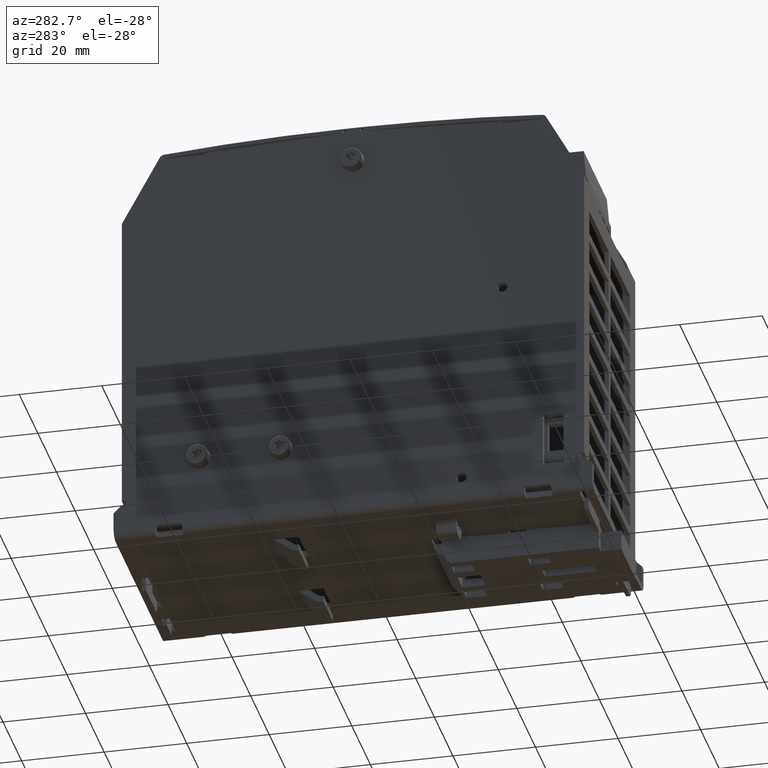
[diagram: clean part render]
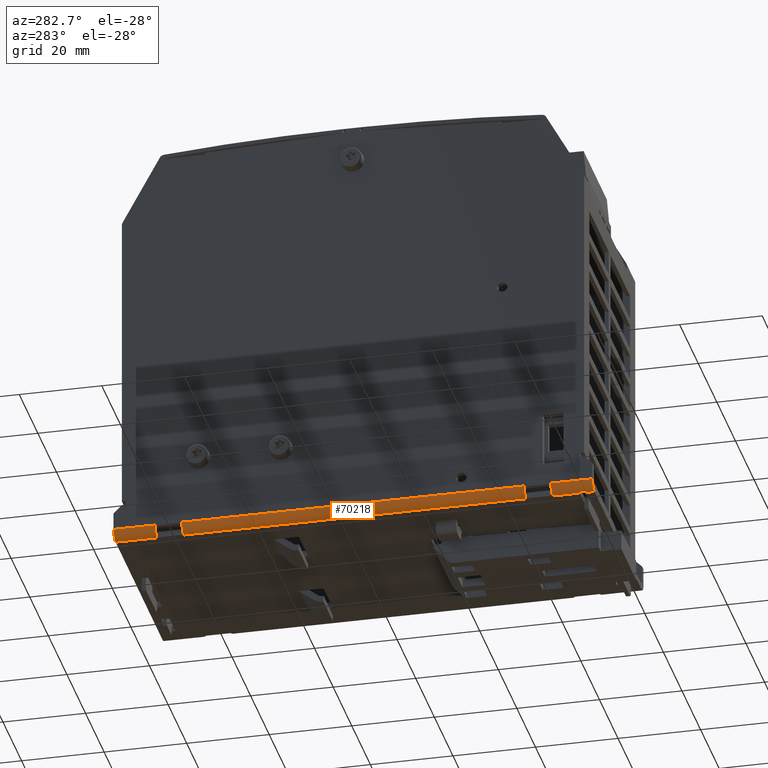
[diagram: same view with one face highlighted and labeled with its STEP entity id]
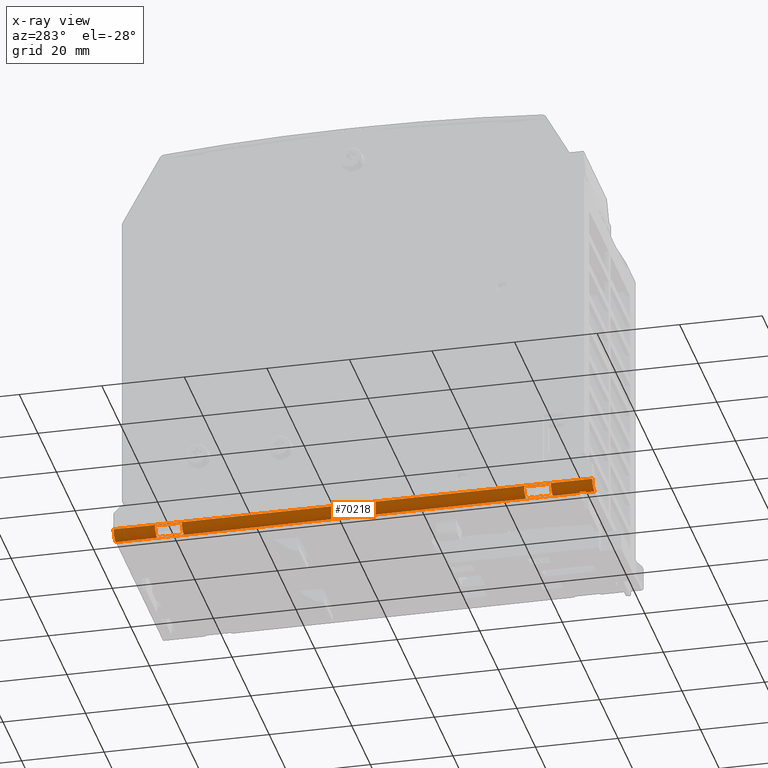
[diagram: x-ray of the same camera — body ghosted, the highlighted face saturated]
A machine part, auxiliary view. The second image highlights one B-rep face of the part: STEP entity #70218.
The next image is the same camera in x-ray: the body ghosted, the highlighted face saturated — about 0% of this face is hidden behind the body in this view.
In plain terms, the highlighted cylindrical surface (edge-blend (fillet) strip) has radius 2.25 mm, axis along (0, 1, 0).
Its self-contained STEP definition (entity closure, byte-faithful):
#65942=CARTESIAN_POINT('',(-0.994094488188978,-2.283464566929135,2.098059E-015));
#65943=VERTEX_POINT('',#65942);
#65950=CARTESIAN_POINT('',(-0.994094488188978,-2.202755905511812,2.108987E-015));
#65951=VERTEX_POINT('',#65950);
#65952=CARTESIAN_POINT('',(-0.994094488188978,-2.283464566929135,2.098059E-015));
#65953=DIRECTION('',(0.0,1.0,0.0));
#65954=VECTOR('',#65953,0.080708661417324);
#65955=LINE('',#65952,#65954);
#65956=EDGE_CURVE('',#65943,#65951,#65955,.T.);
#65983=CARTESIAN_POINT('',(-0.994094488188978,-2.143700787401575,2.108987E-015));
#65984=VERTEX_POINT('',#65983);
#65991=CARTESIAN_POINT('',(-0.994094488188978,2.283464566929135,2.098059E-015));
#65992=VERTEX_POINT('',#65991);
#65993=CARTESIAN_POINT('',(-0.994094488188978,-2.143700787401575,2.108987E-015));
#65994=DIRECTION('',(0.0,1.0,0.0));
#65995=VECTOR('',#65994,4.42716535433071);
#65996=LINE('',#65993,#65995);
#65997=EDGE_CURVE('',#65984,#65992,#65996,.T.);
#67245=CARTESIAN_POINT('',(-1.082677165354331,2.283464566929135,0.088582677165357));
#67246=VERTEX_POINT('',#67245);
#67253=CARTESIAN_POINT('',(-1.082677165354331,-2.283464566929135,0.088582677165357));
#67254=VERTEX_POINT('',#67253);
#67255=CARTESIAN_POINT('',(-1.082677165354331,2.283464566929135,0.088582677165357));
#67256=DIRECTION('',(0.0,-1.0,0.0));
#67257=VECTOR('',#67256,4.56692913385827);
#67258=LINE('',#67255,#67257);
#67259=EDGE_CURVE('',#67246,#67254,#67258,.T.);
#67666=CARTESIAN_POINT('',(-1.082420261046676,-1.887795275590552,0.081841123718896));
#67667=VERTEX_POINT('',#67666);
#67668=CARTESIAN_POINT('',(-1.000836041635437,-1.887795275590552,0.000256904307657));
#67669=VERTEX_POINT('',#67668);
#67670=CARTESIAN_POINT('',(-0.994094488188977,-1.887795275590552,0.088582677165356));
#67671=DIRECTION('',(0.0,-1.0,0.0));
#67672=DIRECTION('',(-0.997099835815806,0.0,-0.076104647795603));
#67673=AXIS2_PLACEMENT_3D('',#67670,#67671,#67672);
#67674=CIRCLE('',#67673,0.088582677165354);
#67675=EDGE_CURVE('',#67667,#67669,#67674,.T.);
#67708=CARTESIAN_POINT('',(-1.000836041635437,-1.631889763779528,0.000256904307657));
#67709=VERTEX_POINT('',#67708);
#67710=CARTESIAN_POINT('',(-1.000836041635437,-1.887795275590552,0.000256904307657));
#67711=DIRECTION('',(0.0,1.0,0.0));
#67712=VECTOR('',#67711,0.255905511811024);
#67713=LINE('',#67710,#67712);
#67714=EDGE_CURVE('',#67669,#67709,#67713,.T.);
#67739=CARTESIAN_POINT('',(-1.082420261046676,-1.631889763779528,0.081841123718895));
#67740=VERTEX_POINT('',#67739);
#67741=CARTESIAN_POINT('',(-0.994094488188977,-1.631889763779528,0.088582677165356));
#67742=DIRECTION('',(0.0,1.0,0.0));
#67743=DIRECTION('',(-0.076104647795591,0.0,-0.997099835815807));
#67744=AXIS2_PLACEMENT_3D('',#67741,#67742,#67743);
#67745=CIRCLE('',#67744,0.088582677165354);
#67746=EDGE_CURVE('',#67709,#67740,#67745,.T.);
#67772=CARTESIAN_POINT('',(-1.082420261046676,-1.631889763779528,0.081841123718895));
#67773=DIRECTION('',(0.0,-1.0,0.0));
#67774=VECTOR('',#67773,0.255905511811024);
#67775=LINE('',#67772,#67774);
#67776=EDGE_CURVE('',#67740,#67667,#67775,.T.);
#67794=CARTESIAN_POINT('',(-1.082420261046677,1.631889763779528,0.081841123718897));
#67795=VERTEX_POINT('',#67794);
#67796=CARTESIAN_POINT('',(-1.000836041635438,1.631889763779528,0.000256904307657));
#67797=VERTEX_POINT('',#67796);
#67798=CARTESIAN_POINT('',(-0.994094488188977,1.631889763779528,0.088582677165356));
#67799=DIRECTION('',(0.0,-1.0,0.0));
#67800=DIRECTION('',(-0.997099835815807,0.0,-0.076104647795592));
#67801=AXIS2_PLACEMENT_3D('',#67798,#67799,#67800);
#67802=CIRCLE('',#67801,0.088582677165354);
#67803=EDGE_CURVE('',#67795,#67797,#67802,.T.);
#67836=CARTESIAN_POINT('',(-1.000836041635438,1.887795275590552,0.000256904307657));
#67837=VERTEX_POINT('',#67836);
#67838=CARTESIAN_POINT('',(-1.000836041635438,1.631889763779528,0.000256904307657));
#67839=DIRECTION('',(0.0,1.0,0.0));
#67840=VECTOR('',#67839,0.255905511811024);
#67841=LINE('',#67838,#67840);
#67842=EDGE_CURVE('',#67797,#67837,#67841,.T.);
#67867=CARTESIAN_POINT('',(-1.082420261046677,1.887795275590552,0.081841123718897));
#67868=VERTEX_POINT('',#67867);
#67869=CARTESIAN_POINT('',(-0.994094488188977,1.887795275590552,0.088582677165356));
#67870=DIRECTION('',(0.0,1.0,0.0));
#67871=DIRECTION('',(-0.076104647795601,0.0,-0.997099835815806));
#67872=AXIS2_PLACEMENT_3D('',#67869,#67870,#67871);
#67873=CIRCLE('',#67872,0.088582677165354);
#67874=EDGE_CURVE('',#67837,#67868,#67873,.T.);
#67900=CARTESIAN_POINT('',(-1.082420261046677,1.887795275590552,0.081841123718897));
#67901=DIRECTION('',(0.0,-1.0,0.0));
#67902=VECTOR('',#67901,0.255905511811024);
#67903=LINE('',#67900,#67902);
#67904=EDGE_CURVE('',#67868,#67795,#67903,.T.);
#67960=CARTESIAN_POINT('',(-1.011811023622049,-2.202755905511812,0.001789733523433));
#67961=VERTEX_POINT('',#67960);
#67962=CARTESIAN_POINT('',(-0.994094488188977,-2.202755905511812,0.088582677165356));
#67963=DIRECTION('',(0.0,-1.0,0.0));
#67964=DIRECTION('',(-0.200000000000005,0.0,-0.97979589711327));
#67965=AXIS2_PLACEMENT_3D('',#67962,#67963,#67964);
#67966=CIRCLE('',#67965,0.088582677165354);
#67967=EDGE_CURVE('',#67961,#65951,#67966,.T.);
#70082=CARTESIAN_POINT('',(-1.011811023622049,-2.143700787401575,0.001789733523433));
#70083=VERTEX_POINT('',#70082);
#70084=CARTESIAN_POINT('',(-1.011811023622049,-2.143700787401575,0.001789733523433));
#70085=DIRECTION('',(0.0,-1.0,0.0));
#70086=VECTOR('',#70085,0.059055118110237);
#70087=LINE('',#70084,#70086);
#70088=EDGE_CURVE('',#70083,#67961,#70087,.T.);
#70151=CARTESIAN_POINT('',(-0.994094488188977,-2.143700787401575,0.088582677165356));
#70152=DIRECTION('',(0.0,1.0,0.0));
#70153=DIRECTION('',(0.0,0.0,-1.0));
#70154=AXIS2_PLACEMENT_3D('',#70151,#70152,#70153);
#70155=CIRCLE('',#70154,0.088582677165354);
#70156=EDGE_CURVE('',#65984,#70083,#70155,.T.);
#70161=CARTESIAN_POINT('',(-0.994094488188977,0.0,0.088582677165356));
#70162=DIRECTION('',(0.0,1.0,0.0));
#70163=DIRECTION('',(0.0,0.0,-1.0));
#70164=AXIS2_PLACEMENT_3D('',#70161,#70162,#70163);
#70165=CYLINDRICAL_SURFACE('',#70164,0.088582677165354);
#70166=ORIENTED_EDGE('',*,*,#70156,.T.);
#70167=ORIENTED_EDGE('',*,*,#70088,.T.);
#70168=ORIENTED_EDGE('',*,*,#67967,.T.);
#70169=ORIENTED_EDGE('',*,*,#65956,.F.);
#70170=CARTESIAN_POINT('',(-1.023622047244096,-2.283464566929135,0.005066128206316));
#70171=VERTEX_POINT('',#70170);
#70172=CARTESIAN_POINT('',(-0.994094488188977,-2.283464566929135,0.088582677165356));
#70173=DIRECTION('',(0.0,-1.0,0.0));
#70174=DIRECTION('',(-0.333333333333342,0.0,-0.94280904158206));
#70175=AXIS2_PLACEMENT_3D('',#70172,#70173,#70174);
#70176=CIRCLE('',#70175,0.088582677165354);
#70177=EDGE_CURVE('',#70171,#65943,#70176,.T.);
#70178=ORIENTED_EDGE('',*,*,#70177,.F.);
#70179=CARTESIAN_POINT('',(-0.994094488188977,-2.283464566929135,0.088582677165356));
#70180=DIRECTION('',(0.0,-1.0,0.0));
#70181=DIRECTION('',(-1.0,0.0,0.0));
#70182=AXIS2_PLACEMENT_3D('',#70179,#70180,#70181);
#70183=CIRCLE('',#70182,0.088582677165354);
#70184=EDGE_CURVE('',#67254,#70171,#70183,.T.);
#70185=ORIENTED_EDGE('',*,*,#70184,.F.);
#70186=ORIENTED_EDGE('',*,*,#67259,.F.);
#70187=CARTESIAN_POINT('',(-1.023622047244096,2.283464566929135,0.005066128206316));
#70188=VERTEX_POINT('',#70187);
#70189=CARTESIAN_POINT('',(-0.994094488188977,2.283464566929135,0.088582677165356));
#70190=DIRECTION('',(0.0,1.0,0.0));
#70191=DIRECTION('',(-0.333333333333342,0.0,-0.94280904158206));
#70192=AXIS2_PLACEMENT_3D('',#70189,#70190,#70191);
#70193=CIRCLE('',#70192,0.088582677165354);
#70194=EDGE_CURVE('',#70188,#67246,#70193,.T.);
#70195=ORIENTED_EDGE('',*,*,#70194,.F.);
#70196=CARTESIAN_POINT('',(-0.994094488188977,2.283464566929135,0.088582677165356));
#70197=DIRECTION('',(0.0,1.0,0.0));
#70198=DIRECTION('',(0.0,0.0,-1.0));
#70199=AXIS2_PLACEMENT_3D('',#70196,#70197,#70198);
#70200=CIRCLE('',#70199,0.088582677165354);
#70201=EDGE_CURVE('',#65992,#70188,#70200,.T.);
#70202=ORIENTED_EDGE('',*,*,#70201,.F.);
#70203=ORIENTED_EDGE('',*,*,#65997,.F.);
#70204=EDGE_LOOP('',(#70166,#70167,#70168,#70169,#70178,#70185,#70186,#70195,#70202,#70203));
#70205=FACE_OUTER_BOUND('',#70204,.T.);
#70206=ORIENTED_EDGE('',*,*,#67675,.T.);
#70207=ORIENTED_EDGE('',*,*,#67714,.T.);
#70208=ORIENTED_EDGE('',*,*,#67746,.T.);
#70209=ORIENTED_EDGE('',*,*,#67776,.T.);
#70210=EDGE_LOOP('',(#70206,#70207,#70208,#70209));
#70211=FACE_BOUND('',#70210,.T.);
#70212=ORIENTED_EDGE('',*,*,#67803,.T.);
#70213=ORIENTED_EDGE('',*,*,#67842,.T.);
#70214=ORIENTED_EDGE('',*,*,#67874,.T.);
#70215=ORIENTED_EDGE('',*,*,#67904,.T.);
#70216=EDGE_LOOP('',(#70212,#70213,#70214,#70215));
#70217=FACE_BOUND('',#70216,.T.);
#70218=ADVANCED_FACE('',(#70205,#70211,#70217),#70165,.T.);